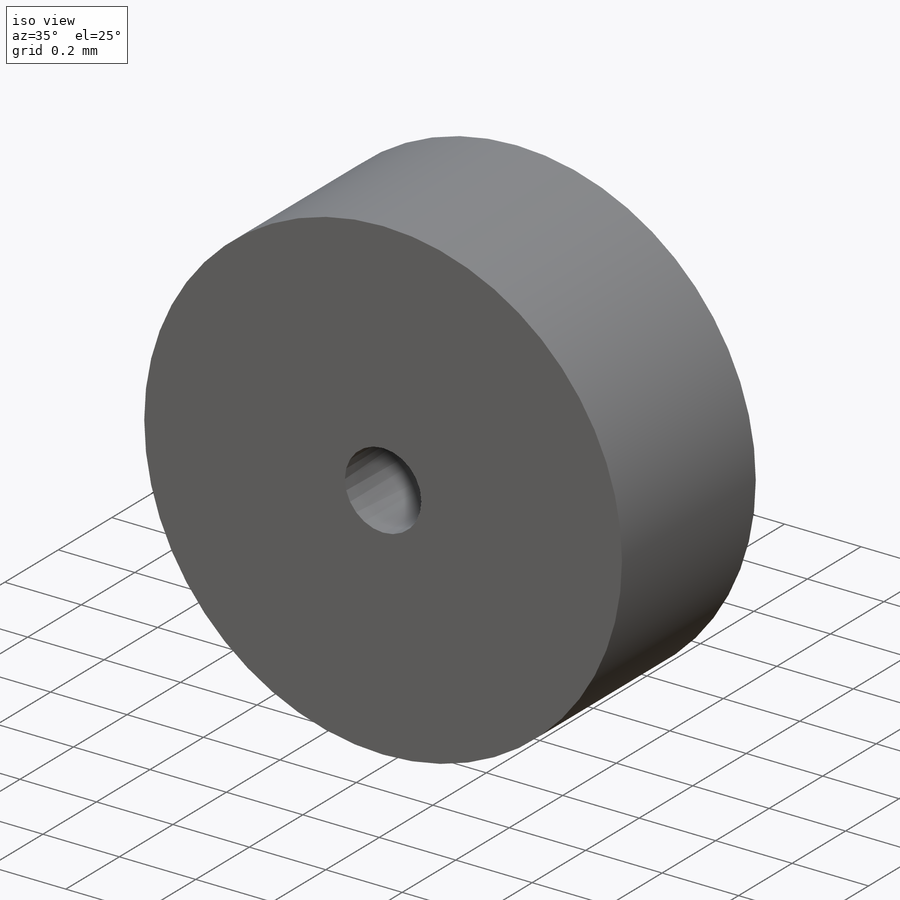
[diagram: iso view]
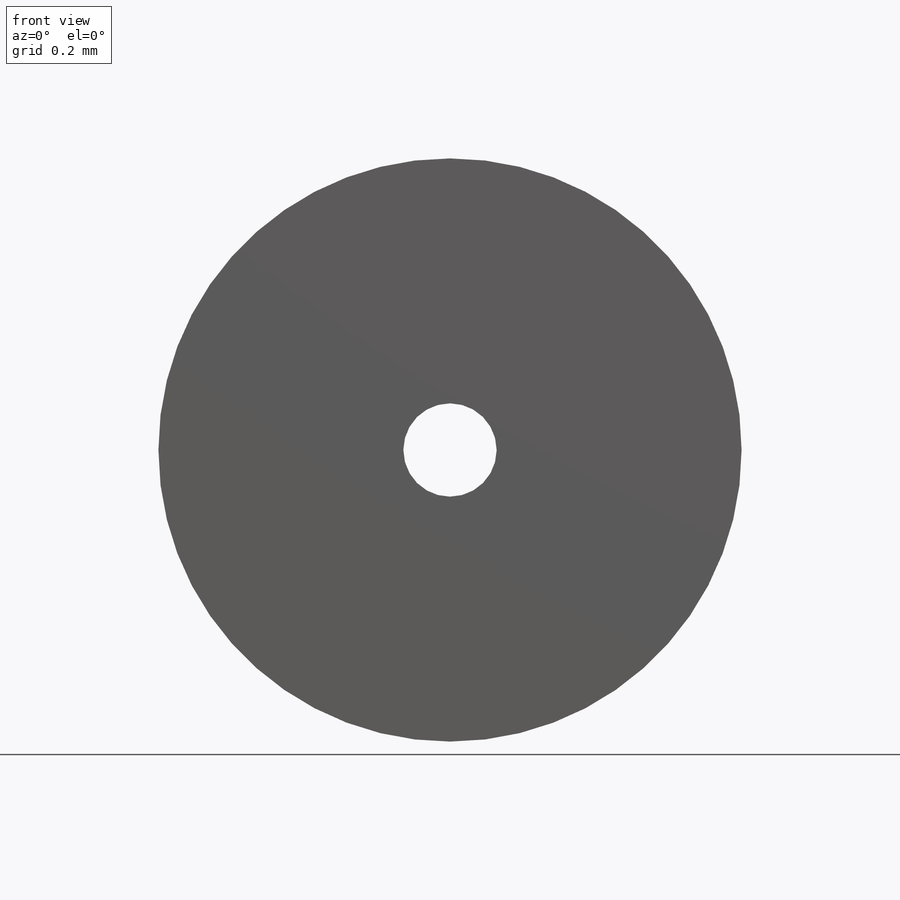
[diagram: front view]
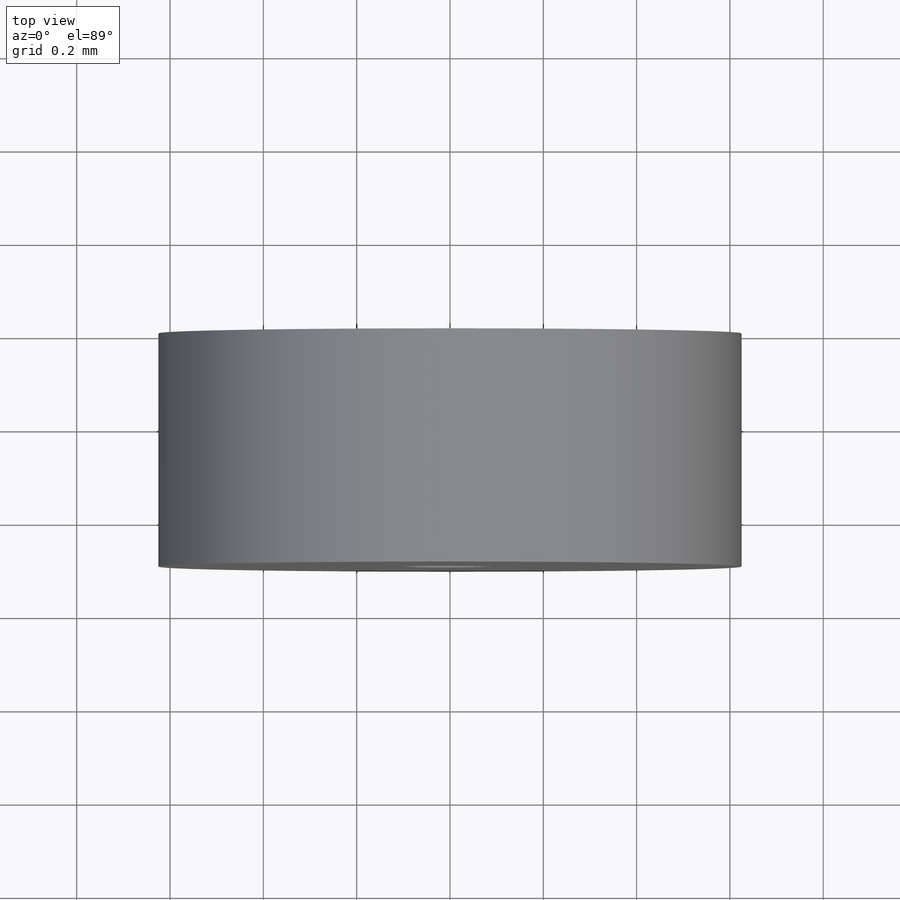
[diagram: top view]
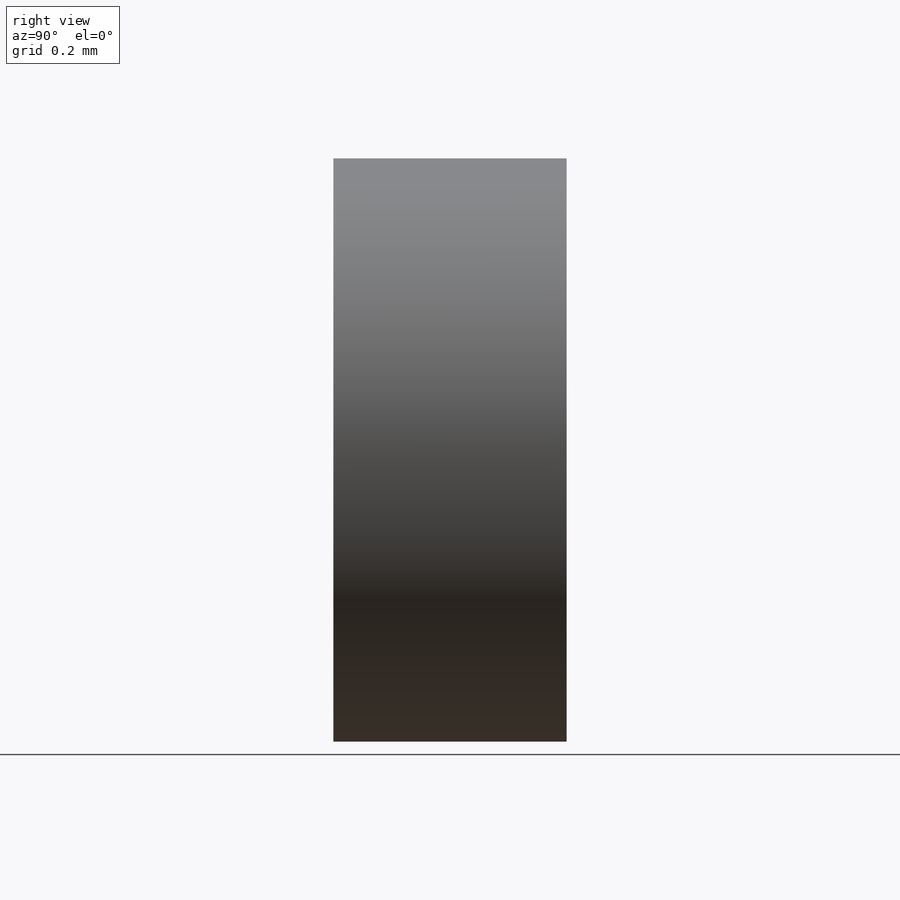
[diagram: right view]
SOLIDWORKS PART (.sldprt)
format: sldprt  version: not decoded by parser v0  size: 180,224 bytes
history: native  units: mm
features: sketch x2, material x1, extrude x1, cut_revolve x1, fillet x1 (+11 scaffold rows collapsed)
feature tree (17):
  scaffold x11  (default folders/planes/origin — collapsed)
  material  "Material <sin especificar>"
  sketch  "Croquis1"  dims[D1=1.25mm D2=0.2mm]
  extrude  "Saliente-Extruir1"  Depth=0.5mm
  sketch  "Croquis2"  dims[D1=0.75mm D2=0.25mm]
  cut_revolve  "Cortar-Revolución3"  Angle=360deg
  fillet  "Redondeo1"  Radius=0.15mm
decode coverage: 5 of 5 modeling features carry decoded parameters
note: suppression state not decoded; provenance and decode notes live in map.json
